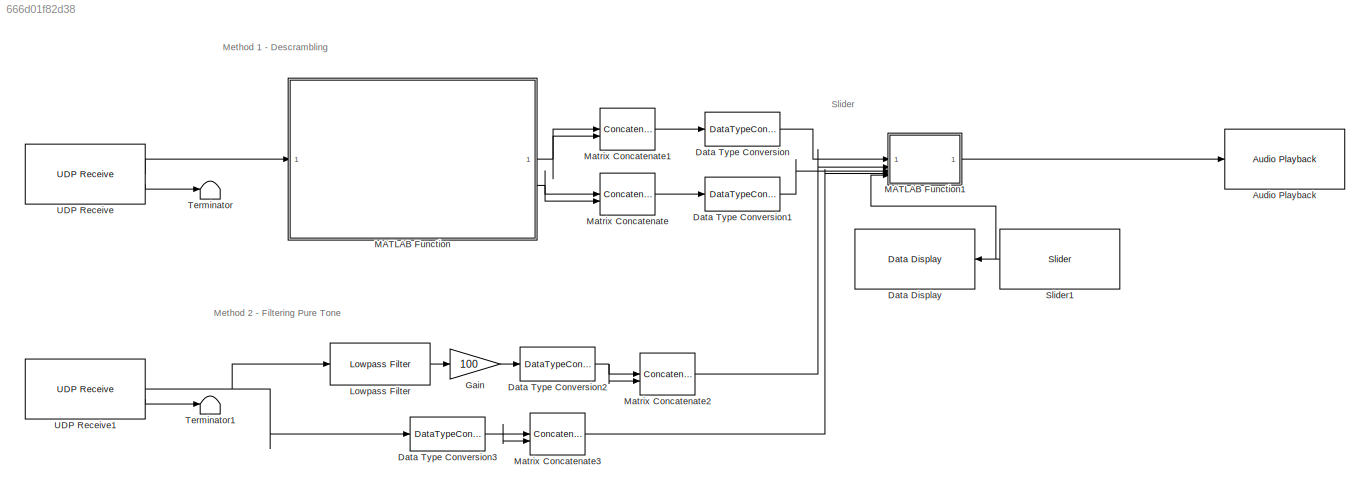
MODEL slx_666d01f82d38
KIND model
CONFIG AbsTol = auto
CONFIG EnableMultiTasking = off
CONFIG FixedStep = auto
CONFIG MaxStep = auto
CONFIG MinStep = auto
CONFIG RelTol = 1e-3
CONFIG SampleTimeConstraint = Unconstrained
CONFIG SolverName = FixedStepAuto
CONFIG StartTime = 0.0
CONFIG StopTime = 10.0
BLOCK [Reference] Audio Playback  REF=androidaudiovideolib/Audio Playback
  SourceBlock = androidaudiovideolib/Audio Playback
  SourceType = codertarget.internal.androidAudioPlayback
BLOCK [Reference] Data Display  REF=androiduilib/Data Display
  NameLocation = top
  SourceBlock = androiduilib/Data Display
  SourceType = codertarget.internal.androidDataDisplay
BLOCK [DataTypeConversion] Data Type Conversion
  OutDataTypeStr = int16
  RndMeth = Floor
  SaturateOnIntegerOverflow = off
BLOCK [DataTypeConversion] Data Type Conversion1
  OutDataTypeStr = int16
  RndMeth = Floor
  SaturateOnIntegerOverflow = off
BLOCK [DataTypeConversion] Data Type Conversion2
  OutDataTypeStr = int16
  RndMeth = Floor
  SaturateOnIntegerOverflow = off
BLOCK [DataTypeConversion] Data Type Conversion3
  OutDataTypeStr = int16
  RndMeth = Floor
  SaturateOnIntegerOverflow = off
BLOCK [Gain] Gain
  Gain = 100
BLOCK [Reference] Lowpass Filter  REF=dspfdesign/Lowpass Filter
  SourceBlock = dspfdesign/Lowpass Filter
  SourceType = dsp.simulink.LowpassFilter
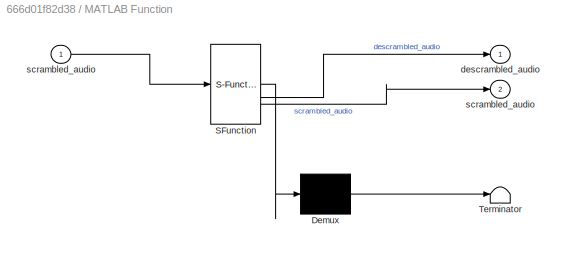
BLOCK [SubSystem] MATLAB Function
  ErrorFcn = Stateflow.Translate.translate
  LibrarySourceBlock = simulink/User-Defined\nFunctions/MATLAB Function
  PermitHierarchicalResolution = ExplicitOnly
  SFBlockType = MATLAB Function
  TreatAsAtomicUnit = on
BLOCK [Demux] MATLAB Function/ Demux 
  Outputs = 1
BLOCK [S-Function] MATLAB Function/ SFunction 
  EnableBusSupport = off
  FunctionName = sf_sfun
  PortCounts = [1 3]
  SFcnIsStateOwnerBlock = off
  SFunctionDeploymentMode = off
  Tag = Stateflow S-Function 2
BLOCK [Terminator] MATLAB Function/ Terminator 
BLOCK [Outport] MATLAB Function/descrambled_audio
BLOCK [Outport] MATLAB Function/scrambled_audio
  Port = 2
BLOCK [Inport] MATLAB Function/scrambled_audio 
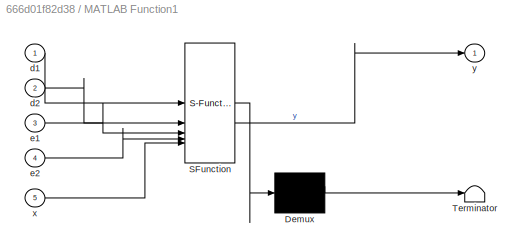
BLOCK [SubSystem] MATLAB Function1
  ErrorFcn = Stateflow.Translate.translate
  LibrarySourceBlock = simulink/User-Defined\nFunctions/MATLAB Function
  PermitHierarchicalResolution = ExplicitOnly
  SFBlockType = MATLAB Function
  TreatAsAtomicUnit = on
BLOCK [Demux] MATLAB Function1/ Demux 
  Outputs = 1
BLOCK [S-Function] MATLAB Function1/ SFunction 
  EnableBusSupport = off
  FunctionName = sf_sfun
  PortCounts = [5 2]
  SFcnIsStateOwnerBlock = off
  SFunctionDeploymentMode = off
  Tag = Stateflow S-Function 1
BLOCK [Terminator] MATLAB Function1/ Terminator 
BLOCK [Inport] MATLAB Function1/d1
BLOCK [Inport] MATLAB Function1/d2
  Port = 2
BLOCK [Inport] MATLAB Function1/e1
  Port = 3
BLOCK [Inport] MATLAB Function1/e2
  Port = 4
BLOCK [Inport] MATLAB Function1/x
  Port = 5
BLOCK [Outport] MATLAB Function1/y
BLOCK [Concatenate] Matrix Concatenate
  ConcatenateDimension = 2
  Mode = Multidimensional array
BLOCK [Concatenate] Matrix Concatenate1
  ConcatenateDimension = 2
  Mode = Multidimensional array
BLOCK [Concatenate] Matrix Concatenate2
  ConcatenateDimension = 2
  Mode = Multidimensional array
BLOCK [Concatenate] Matrix Concatenate3
  ConcatenateDimension = 2
  Mode = Multidimensional array
BLOCK [Reference] Slider1  REF=androiduilib/Slider
  NameLocation = top
  SourceBlock = androiduilib/Slider
  SourceType = codertarget.internal.androidSlider
BLOCK [Terminator] Terminator
BLOCK [Terminator] Terminator1
BLOCK [Reference] UDP Receive  REF=androidcommunicationlib/UDP Receive
  SourceBlock = androidcommunicationlib/UDP Receive
  SourceType = UDP Receive
BLOCK [Reference] UDP Receive1  REF=androidcommunicationlib/UDP Receive
  SourceBlock = androidcommunicationlib/UDP Receive
  SourceType = UDP Receive
ANNOTATION (root): Method 1 - Descrambling
ANNOTATION (root): Method 2 - Filtering Pure Tone
ANNOTATION (root): Slider
LINE Data Type Conversion1:1 -> MATLAB Function1:3
NET Data Type Conversion2:1 -> Matrix Concatenate2:1, Matrix Concatenate2:2
NET Data Type Conversion3:1 -> Matrix Concatenate3:1, Matrix Concatenate3:2
LINE Data Type Conversion:1 -> MATLAB Function1:1
LINE Gain:1 -> Data Type Conversion2:1
LINE Lowpass Filter:1 -> Gain:1
LINE MATLAB Function1:1 -> Audio Playback:1
NET MATLAB Function:1 -> Matrix Concatenate1:1, Matrix Concatenate1:2
NET MATLAB Function:2 -> Matrix Concatenate:1, Matrix Concatenate:2
LINE Matrix Concatenate1:1 -> Data Type Conversion:1
LINE Matrix Concatenate2:1 -> MATLAB Function1:2
LINE Matrix Concatenate3:1 -> MATLAB Function1:4
LINE Matrix Concatenate:1 -> Data Type Conversion1:1
NET Slider1:1 -> Data Display:1, MATLAB Function1:5
NET UDP Receive1:1 -> Data Type Conversion3:1, Lowpass Filter:1
LINE UDP Receive1:2 -> Terminator1:1
LINE UDP Receive:1 -> MATLAB Function:1
LINE UDP Receive:2 -> Terminator:1
note: NET lines group one-source signal fan-out (src -> all destinations, sorted); 1:1 wires keep LINE
CHART MATLAB Function1 states=1 transitions=1
  STATE_LABEL 'eML_blk_kernel()'
  STATE_LABEL 'SCRIPT:\nfunction y = fcn(d1, d2, e1, e2, x)\n    % Check if x equals 1\n    if x == 0\n        y = e1;\n    elseif x==1\n        y=d1;\n    elseif x==2\n        y=e2;\n    else\n        y = d2;\n    end\nend'
CHART MATLAB Function states=1 transitions=1
  STATE_LABEL 'eML_blk_kernel()'
  STATE_LABEL "SCRIPT:\nfunction [descrambled_audio,scrambled_audio] = descramble_freq(scrambled_audio)\n    seed=123;\n    descrambled_audio = zeros(size(scrambled_audio)); \n    rng(seed, 'twister');\n    n = size(scrambled_audio, 1);\n    swap_indices = randperm(n);\n    scrambled_audio=scrambled_audio(:,1);\n    scrambled_freq_left = fft(scrambled_audio(:,1));\n    [~, inverse_indices] = sort(swap_indices);\n    descr...<+124ch>"
CHART  states=0 transitions=0
CHART  states=0 transitions=0
